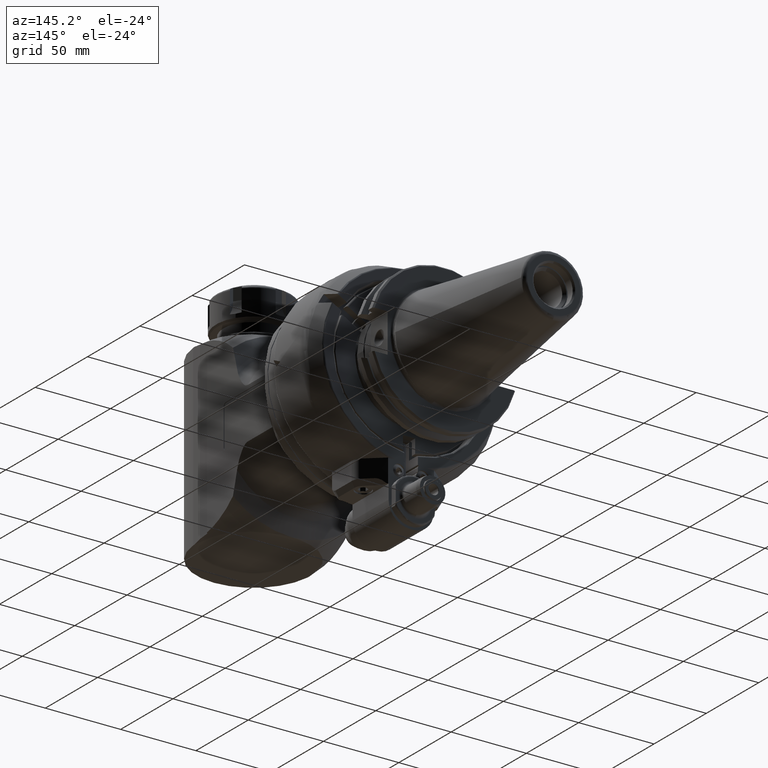
[diagram: clean part render]
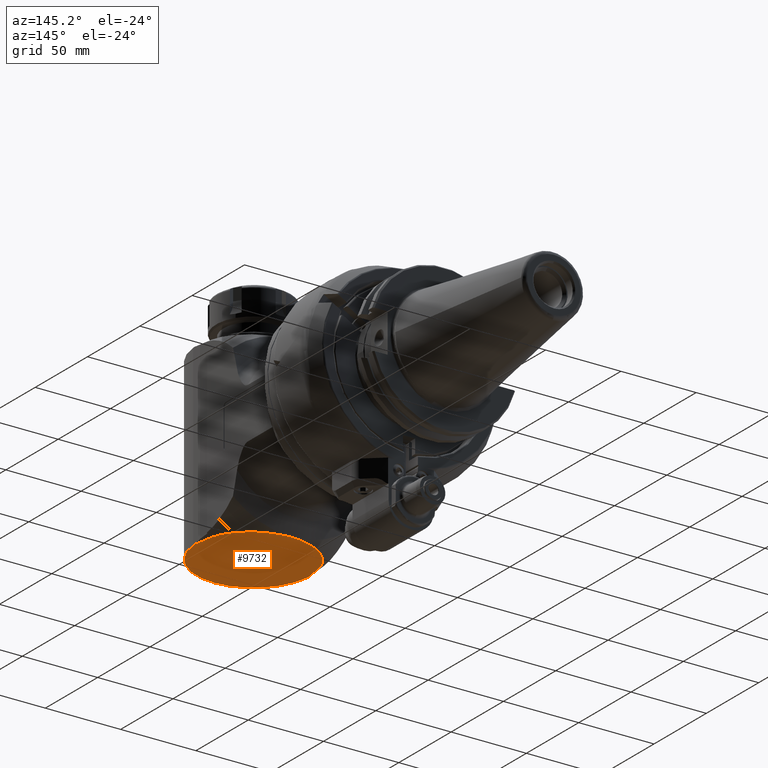
[diagram: same view with one face highlighted and labeled with its STEP entity id]
A machine part, auxiliary view. The second image highlights one B-rep face of the part: STEP entity #9732.
In plain terms, the highlighted planar face has unit normal (0, -0, 1).
Its self-contained STEP definition (entity closure, byte-faithful):
#53=(
BOUNDED_CURVE()
B_SPLINE_CURVE(2,(#15081,#15082,#15083),.UNSPECIFIED.,.F.,.F.)
B_SPLINE_CURVE_WITH_KNOTS((3,3),(2.93448085738613,4.30098563059618),
 .UNSPECIFIED.)
CURVE()
GEOMETRIC_REPRESENTATION_ITEM()
RATIONAL_B_SPLINE_CURVE((1.00188573708598,1.00205643421679,1.00197718661706))
REPRESENTATION_ITEM('')
);
#54=(
BOUNDED_CURVE()
B_SPLINE_CURVE(2,(#15087,#15088,#15089),.UNSPECIFIED.,.F.,.F.)
B_SPLINE_CURVE_WITH_KNOTS((3,3),(2.71811370431364,3.37089348861986),
 .UNSPECIFIED.)
CURVE()
GEOMETRIC_REPRESENTATION_ITEM()
RATIONAL_B_SPLINE_CURVE((1.00705525668742,1.00746944688331,1.00767565836804))
REPRESENTATION_ITEM('')
);
#55=(
BOUNDED_CURVE()
B_SPLINE_CURVE(2,(#15093,#15094,#15095),.UNSPECIFIED.,.F.,.F.)
B_SPLINE_CURVE_WITH_KNOTS((3,3),(2.74222662585225,3.62687937368917),
 .UNSPECIFIED.)
CURVE()
GEOMETRIC_REPRESENTATION_ITEM()
RATIONAL_B_SPLINE_CURVE((1.02211110432314,1.02410051595921,1.02507233739254))
REPRESENTATION_ITEM('')
);
#56=(
BOUNDED_CURVE()
B_SPLINE_CURVE(2,(#15103,#15104,#15105),.UNSPECIFIED.,.F.,.F.)
B_SPLINE_CURVE_WITH_KNOTS((3,3),(-4.30098563059562,-2.9344808573867),
 .UNSPECIFIED.)
CURVE()
GEOMETRIC_REPRESENTATION_ITEM()
RATIONAL_B_SPLINE_CURVE((1.00197718661707,1.0020564342168,1.00188573708599))
REPRESENTATION_ITEM('')
);
#57=(
BOUNDED_CURVE()
B_SPLINE_CURVE(2,(#15107,#15108,#15109),.UNSPECIFIED.,.F.,.F.)
B_SPLINE_CURVE_WITH_KNOTS((3,3),(-3.37089348862039,-2.71811370431348),
 .UNSPECIFIED.)
CURVE()
GEOMETRIC_REPRESENTATION_ITEM()
RATIONAL_B_SPLINE_CURVE((1.00767565836804,1.00746944688331,1.00705525668742))
REPRESENTATION_ITEM('')
);
#58=(
BOUNDED_CURVE()
B_SPLINE_CURVE(2,(#15111,#15112,#15113),.UNSPECIFIED.,.F.,.F.)
B_SPLINE_CURVE_WITH_KNOTS((3,3),(-3.62687937368899,-2.74222662585564),
 .UNSPECIFIED.)
CURVE()
GEOMETRIC_REPRESENTATION_ITEM()
RATIONAL_B_SPLINE_CURVE((1.02507233739254,1.02410051595921,1.02211110432316))
REPRESENTATION_ITEM('')
);
#59=(
BOUNDED_CURVE()
B_SPLINE_CURVE(2,(#15115,#15116,#15117),.UNSPECIFIED.,.F.,.F.)
B_SPLINE_CURVE_WITH_KNOTS((3,3),(-3.71365893653164,-2.3794494730781),
 .UNSPECIFIED.)
CURVE()
GEOMETRIC_REPRESENTATION_ITEM()
RATIONAL_B_SPLINE_CURVE((1.04614547218408,1.04271615202166,1.03579468905903))
REPRESENTATION_ITEM('')
);
#60=(
BOUNDED_CURVE()
B_SPLINE_CURVE(2,(#15119,#15120,#15121),.UNSPECIFIED.,.F.,.F.)
B_SPLINE_CURVE_WITH_KNOTS((3,3),(-15.527399004134,-11.5955866176865),
 .UNSPECIFIED.)
CURVE()
GEOMETRIC_REPRESENTATION_ITEM()
RATIONAL_B_SPLINE_CURVE((1.35306260130723,1.39892913016397,1.39892913016397))
REPRESENTATION_ITEM('')
);
#61=(
BOUNDED_CURVE()
B_SPLINE_CURVE(2,(#15123,#15124,#15125),.UNSPECIFIED.,.F.,.F.)
B_SPLINE_CURVE_WITH_KNOTS((3,3),(-11.5955866176865,-7.66377423123892),
 .UNSPECIFIED.)
CURVE()
GEOMETRIC_REPRESENTATION_ITEM()
RATIONAL_B_SPLINE_CURVE((1.39892913016397,1.39892913016397,1.35306260130723))
REPRESENTATION_ITEM('')
);
#62=(
BOUNDED_CURVE()
B_SPLINE_CURVE(2,(#15126,#15127,#15128),.UNSPECIFIED.,.F.,.F.)
B_SPLINE_CURVE_WITH_KNOTS((3,3),(-7.66828324306775,-6.33407377961775),
 .UNSPECIFIED.)
CURVE()
GEOMETRIC_REPRESENTATION_ITEM()
RATIONAL_B_SPLINE_CURVE((1.03579468905905,1.04271615202166,1.04614547218408))
REPRESENTATION_ITEM('')
);
#464=PLANE('',#10485);
#905=FACE_OUTER_BOUND('',#1501,.T.);
#1501=EDGE_LOOP('',(#6591,#6592,#6593,#6594,#6595,#6596,#6597,#6598,#6599,
#6600,#6601,#6602,#6603));
#2162=LINE('',#15075,#2796);
#2163=LINE('',#15101,#2797);
#2796=VECTOR('',#11750,10.);
#2797=VECTOR('',#11767,10.);
#3446=CIRCLE('',#10486,38.);
#4034=VERTEX_POINT('',#15072);
#4035=VERTEX_POINT('',#15074);
#4036=VERTEX_POINT('',#15080);
#4037=VERTEX_POINT('',#15086);
#4038=VERTEX_POINT('',#15092);
#4039=VERTEX_POINT('',#15098);
#4040=VERTEX_POINT('',#15100);
#4041=VERTEX_POINT('',#15102);
#4042=VERTEX_POINT('',#15106);
#4043=VERTEX_POINT('',#15110);
#4044=VERTEX_POINT('',#15114);
#4045=VERTEX_POINT('',#15118);
#4046=VERTEX_POINT('',#15122);
#5029=EDGE_CURVE('',#4035,#4034,#2162,.T.);
#5031=EDGE_CURVE('',#4036,#4035,#53,.T.);
#5033=EDGE_CURVE('',#4037,#4036,#54,.T.);
#5035=EDGE_CURVE('',#4038,#4037,#55,.T.);
#5037=EDGE_CURVE('',#4034,#4039,#3446,.T.);
#5038=EDGE_CURVE('',#4039,#4040,#2163,.T.);
#5039=EDGE_CURVE('',#4040,#4041,#56,.T.);
#5040=EDGE_CURVE('',#4041,#4042,#57,.T.);
#5041=EDGE_CURVE('',#4042,#4043,#58,.T.);
#5042=EDGE_CURVE('',#4043,#4044,#59,.T.);
#5043=EDGE_CURVE('',#4044,#4045,#60,.T.);
#5044=EDGE_CURVE('',#4045,#4046,#61,.T.);
#5045=EDGE_CURVE('',#4046,#4038,#62,.T.);
#6591=ORIENTED_EDGE('',*,*,#5035,.T.);
#6592=ORIENTED_EDGE('',*,*,#5033,.T.);
#6593=ORIENTED_EDGE('',*,*,#5031,.T.);
#6594=ORIENTED_EDGE('',*,*,#5029,.T.);
#6595=ORIENTED_EDGE('',*,*,#5037,.T.);
#6596=ORIENTED_EDGE('',*,*,#5038,.T.);
#6597=ORIENTED_EDGE('',*,*,#5039,.T.);
#6598=ORIENTED_EDGE('',*,*,#5040,.T.);
#6599=ORIENTED_EDGE('',*,*,#5041,.T.);
#6600=ORIENTED_EDGE('',*,*,#5042,.T.);
#6601=ORIENTED_EDGE('',*,*,#5043,.T.);
#6602=ORIENTED_EDGE('',*,*,#5044,.T.);
#6603=ORIENTED_EDGE('',*,*,#5045,.T.);
#9732=ADVANCED_FACE('',(#905),#464,.F.);
#10485=AXIS2_PLACEMENT_3D('',#15097,#11763,#11764);
#10486=AXIS2_PLACEMENT_3D('',#15099,#11765,#11766);
#11750=DIRECTION('',(0.996194698091745,0.,-0.0871557427476639));
#11763=DIRECTION('center_axis',(0.,-1.,0.));
#11764=DIRECTION('ref_axis',(0.,0.,1.));
#11765=DIRECTION('center_axis',(0.,1.,0.));
#11766=DIRECTION('ref_axis',(0.0871557427475362,0.,0.996194698091756));
#11767=DIRECTION('',(-0.996194698091745,0.,-0.0871557427476639));
#15072=CARTESIAN_POINT('',(113.3119182244,59.,37.85539852749));
#15074=CARTESIAN_POINT('',(111.945889323702,59.0000023532003,37.9749142164766));
#15075=CARTESIAN_POINT('',(35.1618680385176,59.,44.6926419727377));
#15080=CARTESIAN_POINT('',(98.632530153685,58.999999989954,35.7770876808092));
#15081=CARTESIAN_POINT('Ctrl Pts',(98.6325301578071,59.,35.7770876568083));
#15082=CARTESIAN_POINT('Ctrl Pts',(105.090817686993,59.,36.866803498297));
#15083=CARTESIAN_POINT('Ctrl Pts',(111.945845091774,59.,37.9749144401427));
#15086=CARTESIAN_POINT('',(92.9612489764867,58.9999998692395,33.8082836053796));
#15087=CARTESIAN_POINT('Ctrl Pts',(92.9612490827824,59.,33.8082833081779));
#15088=CARTESIAN_POINT('Ctrl Pts',(95.716659804183,59.,34.7855000743497));
#15089=CARTESIAN_POINT('Ctrl Pts',(98.6325301563437,59.,35.7770876733961));
#15092=CARTESIAN_POINT('',(86.8058881507209,58.9999983532084,29.5804081571221));
#15093=CARTESIAN_POINT('Ctrl Pts',(86.8058901380299,59.,29.5804054212265));
#15094=CARTESIAN_POINT('Ctrl Pts',(89.6782955238469,59.,31.662793187104));
#15095=CARTESIAN_POINT('Ctrl Pts',(92.9612490297944,59.,33.8082835258807));
#15097=CARTESIAN_POINT('Origin',(-42.3000024,59.,-91.286499));
#15098=CARTESIAN_POINT('',(113.3119182244,59.,-37.85539852749));
#15099=CARTESIAN_POINT('Origin',(110.,59.,0.));
#15100=CARTESIAN_POINT('',(111.945914181317,59.0000036756603,-37.9749140907799));
#15101=CARTESIAN_POINT('',(33.7774282883451,59.,-44.813764756212));
#15102=CARTESIAN_POINT('',(98.6325301536895,58.9999999899534,-35.7770876808116));
#15103=CARTESIAN_POINT('Ctrl Pts',(111.945845091768,59.,-37.9749144401427));
#15104=CARTESIAN_POINT('Ctrl Pts',(105.090817686992,59.,-36.866803498298));
#15105=CARTESIAN_POINT('Ctrl Pts',(98.6325301578116,59.,-35.7770876568102));
#15106=CARTESIAN_POINT('',(92.9612489764855,58.9999998692398,-33.8082836053786));
#15107=CARTESIAN_POINT('Ctrl Pts',(98.6325301563485,59.,-35.7770876733978));
#15108=CARTESIAN_POINT('Ctrl Pts',(95.7166598041845,59.,-34.7855000743502));
#15109=CARTESIAN_POINT('Ctrl Pts',(92.961249082781,59.,-33.8082833081774));
#15110=CARTESIAN_POINT('',(86.8058881507381,58.9999983532043,-29.5804081571448));
#15111=CARTESIAN_POINT('Ctrl Pts',(92.961249029793,59.,-33.8082835258798));
#15112=CARTESIAN_POINT('Ctrl Pts',(89.6782955238588,59.,-31.6627931871118));
#15113=CARTESIAN_POINT('Ctrl Pts',(86.805890138052,59.,-29.5804054212425));
#15114=CARTESIAN_POINT('',(80.06777084244,59.,-22.09072203437));
#15115=CARTESIAN_POINT('Ctrl Pts',(86.805889303567,59.,-29.5804070011671));
#15116=CARTESIAN_POINT('Ctrl Pts',(82.9484878838084,59.,-25.7484750549349));
#15117=CARTESIAN_POINT('Ctrl Pts',(80.0677708424401,59.,-22.0907220343699));
#15118=CARTESIAN_POINT('',(73.66643272628,59.,-2.576615675581E-13));
#15119=CARTESIAN_POINT('Ctrl Pts',(80.0677708422848,59.,-22.0907220340942));
#15120=CARTESIAN_POINT('Ctrl Pts',(73.6664327262779,59.,-10.6832180328903));
#15121=CARTESIAN_POINT('Ctrl Pts',(73.6664327262779,59.,-1.6761328200618E-13));
#15122=CARTESIAN_POINT('',(80.06777084244,59.,22.09072203437));
#15123=CARTESIAN_POINT('Ctrl Pts',(73.6664327262779,59.,-1.6761328200618E-13));
#15124=CARTESIAN_POINT('Ctrl Pts',(73.6664327262778,59.,10.6832180328902));
#15125=CARTESIAN_POINT('Ctrl Pts',(80.0677708422848,59.,22.0907220340942));
#15126=CARTESIAN_POINT('Ctrl Pts',(80.0677708424401,59.,22.09072203437));
#15127=CARTESIAN_POINT('Ctrl Pts',(82.9484878838009,59.,25.7484750549255));
#15128=CARTESIAN_POINT('Ctrl Pts',(86.805889303547,59.,29.5804070011472));